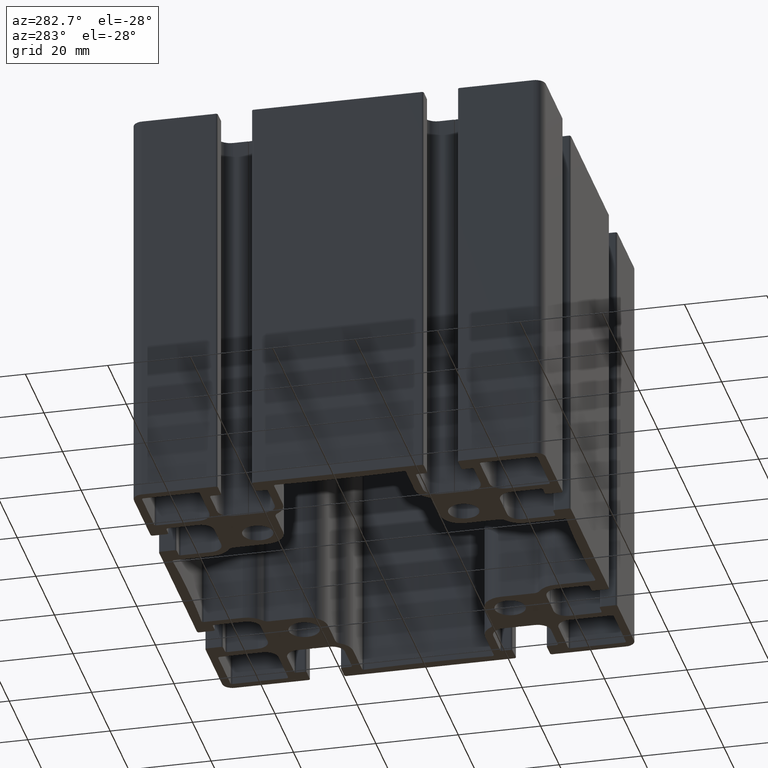
[diagram: clean part render]
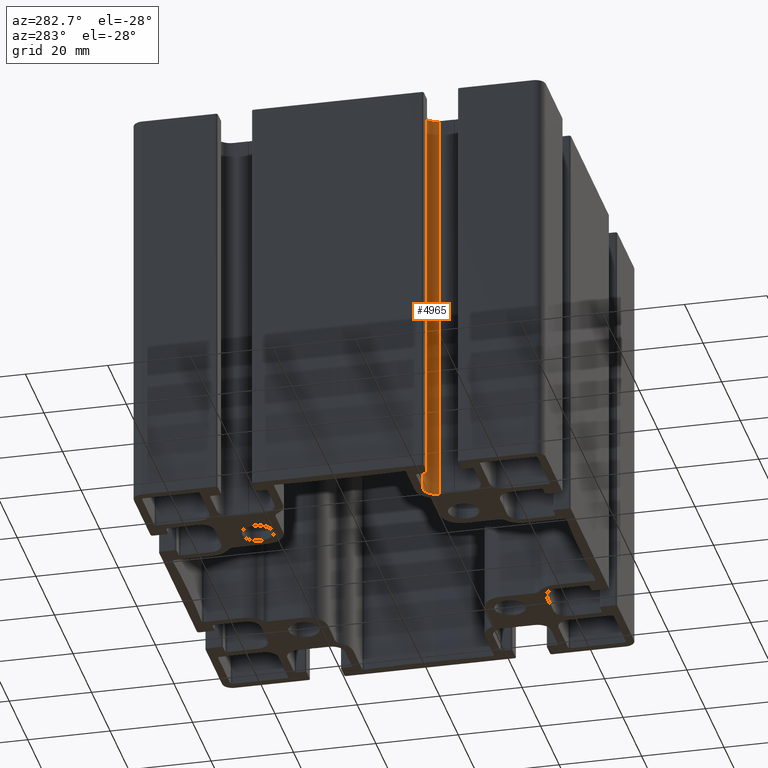
[diagram: same view with one face highlighted and labeled with its STEP entity id]
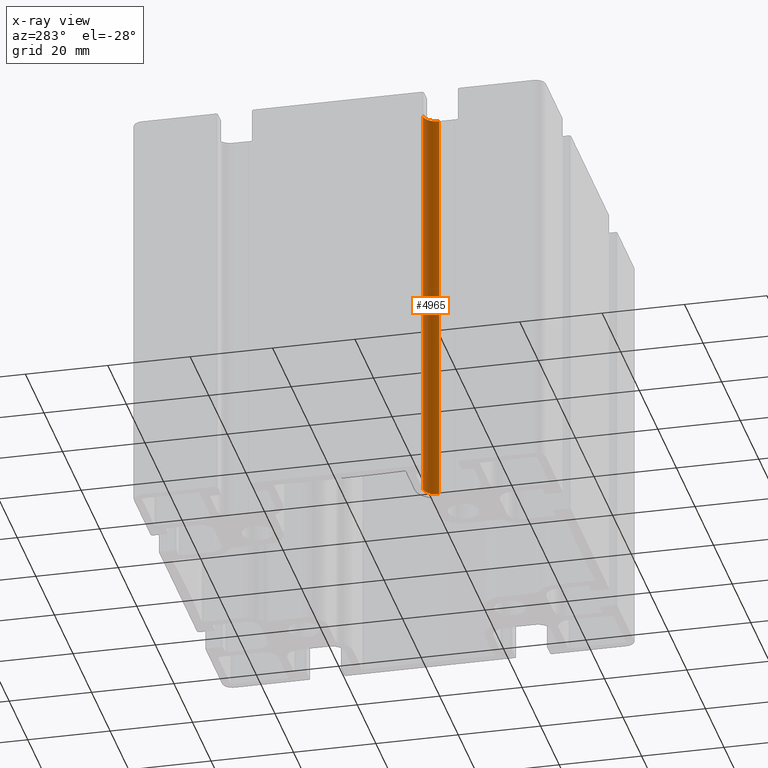
[diagram: x-ray of the same camera — body ghosted, the highlighted face saturated]
A machine part, auxiliary view. The second image highlights one B-rep face of the part: STEP entity #4965.
The next image is the same camera in x-ray: the body ghosted, the highlighted face saturated — about 0% of this face is hidden behind the body in this view.
In plain terms, the highlighted cylindrical surface (edge-blend (fillet) strip) has radius 3.2 mm, axis along (0, 0, 1).
Its self-contained STEP definition (entity closure, byte-faithful):
#251=CIRCLE('',#5432,3.19999999999993);
#252=CIRCLE('',#5433,3.19999999999993);
#392=CYLINDRICAL_SURFACE('',#5431,3.19999999999993);
#617=FACE_OUTER_BOUND('',#871,.T.);
#871=EDGE_LOOP('',(#3975,#3976,#3977,#3978));
#1337=LINE('',#8244,#1829);
#1338=LINE('',#8250,#1830);
#1829=VECTOR('',#6759,100.);
#1830=VECTOR('',#6766,100.);
#2331=VERTEX_POINT('',#8240);
#2332=VERTEX_POINT('',#8242);
#2333=VERTEX_POINT('',#8246);
#2334=VERTEX_POINT('',#8248);
#3031=EDGE_CURVE('',#2331,#2332,#1337,.T.);
#3032=EDGE_CURVE('',#2333,#2331,#251,.T.);
#3033=EDGE_CURVE('',#2334,#2332,#252,.T.);
#3034=EDGE_CURVE('',#2333,#2334,#1338,.T.);
#3975=ORIENTED_EDGE('',*,*,#3032,.T.);
#3976=ORIENTED_EDGE('',*,*,#3031,.T.);
#3977=ORIENTED_EDGE('',*,*,#3033,.F.);
#3978=ORIENTED_EDGE('',*,*,#3034,.F.);
#4965=ADVANCED_FACE('',(#617),#392,.F.);
#5431=AXIS2_PLACEMENT_3D('',#8245,#6760,#6761);
#5432=AXIS2_PLACEMENT_3D('',#8247,#6762,#6763);
#5433=AXIS2_PLACEMENT_3D('',#8249,#6764,#6765);
#6759=DIRECTION('',(0.,0.,1.));
#6760=DIRECTION('center_axis',(0.,0.,1.));
#6761=DIRECTION('ref_axis',(-1.,0.,0.));
#6762=DIRECTION('center_axis',(0.,0.,-1.));
#6763=DIRECTION('ref_axis',(-1.,0.,0.));
#6764=DIRECTION('center_axis',(0.,0.,-1.));
#6765=DIRECTION('ref_axis',(-1.,0.,0.));
#6766=DIRECTION('',(0.,0.,1.));
#8240=CARTESIAN_POINT('',(-34.6999999999947,-21.2000000000867,0.));
#8242=CARTESIAN_POINT('',(-34.6999999999947,-21.2000000000867,100.));
#8244=CARTESIAN_POINT('',(-34.6999999999947,-21.2000000000867,0.));
#8245=CARTESIAN_POINT('Origin',(-37.8999999999947,-21.2000000000867,0.));
#8246=CARTESIAN_POINT('',(-37.899999999995,-18.0000000000868,0.));
#8247=CARTESIAN_POINT('Origin',(-37.8999999999947,-21.2000000000867,0.));
#8248=CARTESIAN_POINT('',(-37.899999999995,-18.0000000000868,100.));
#8249=CARTESIAN_POINT('Origin',(-37.8999999999947,-21.2000000000867,100.));
#8250=CARTESIAN_POINT('',(-37.899999999995,-18.0000000000868,0.));